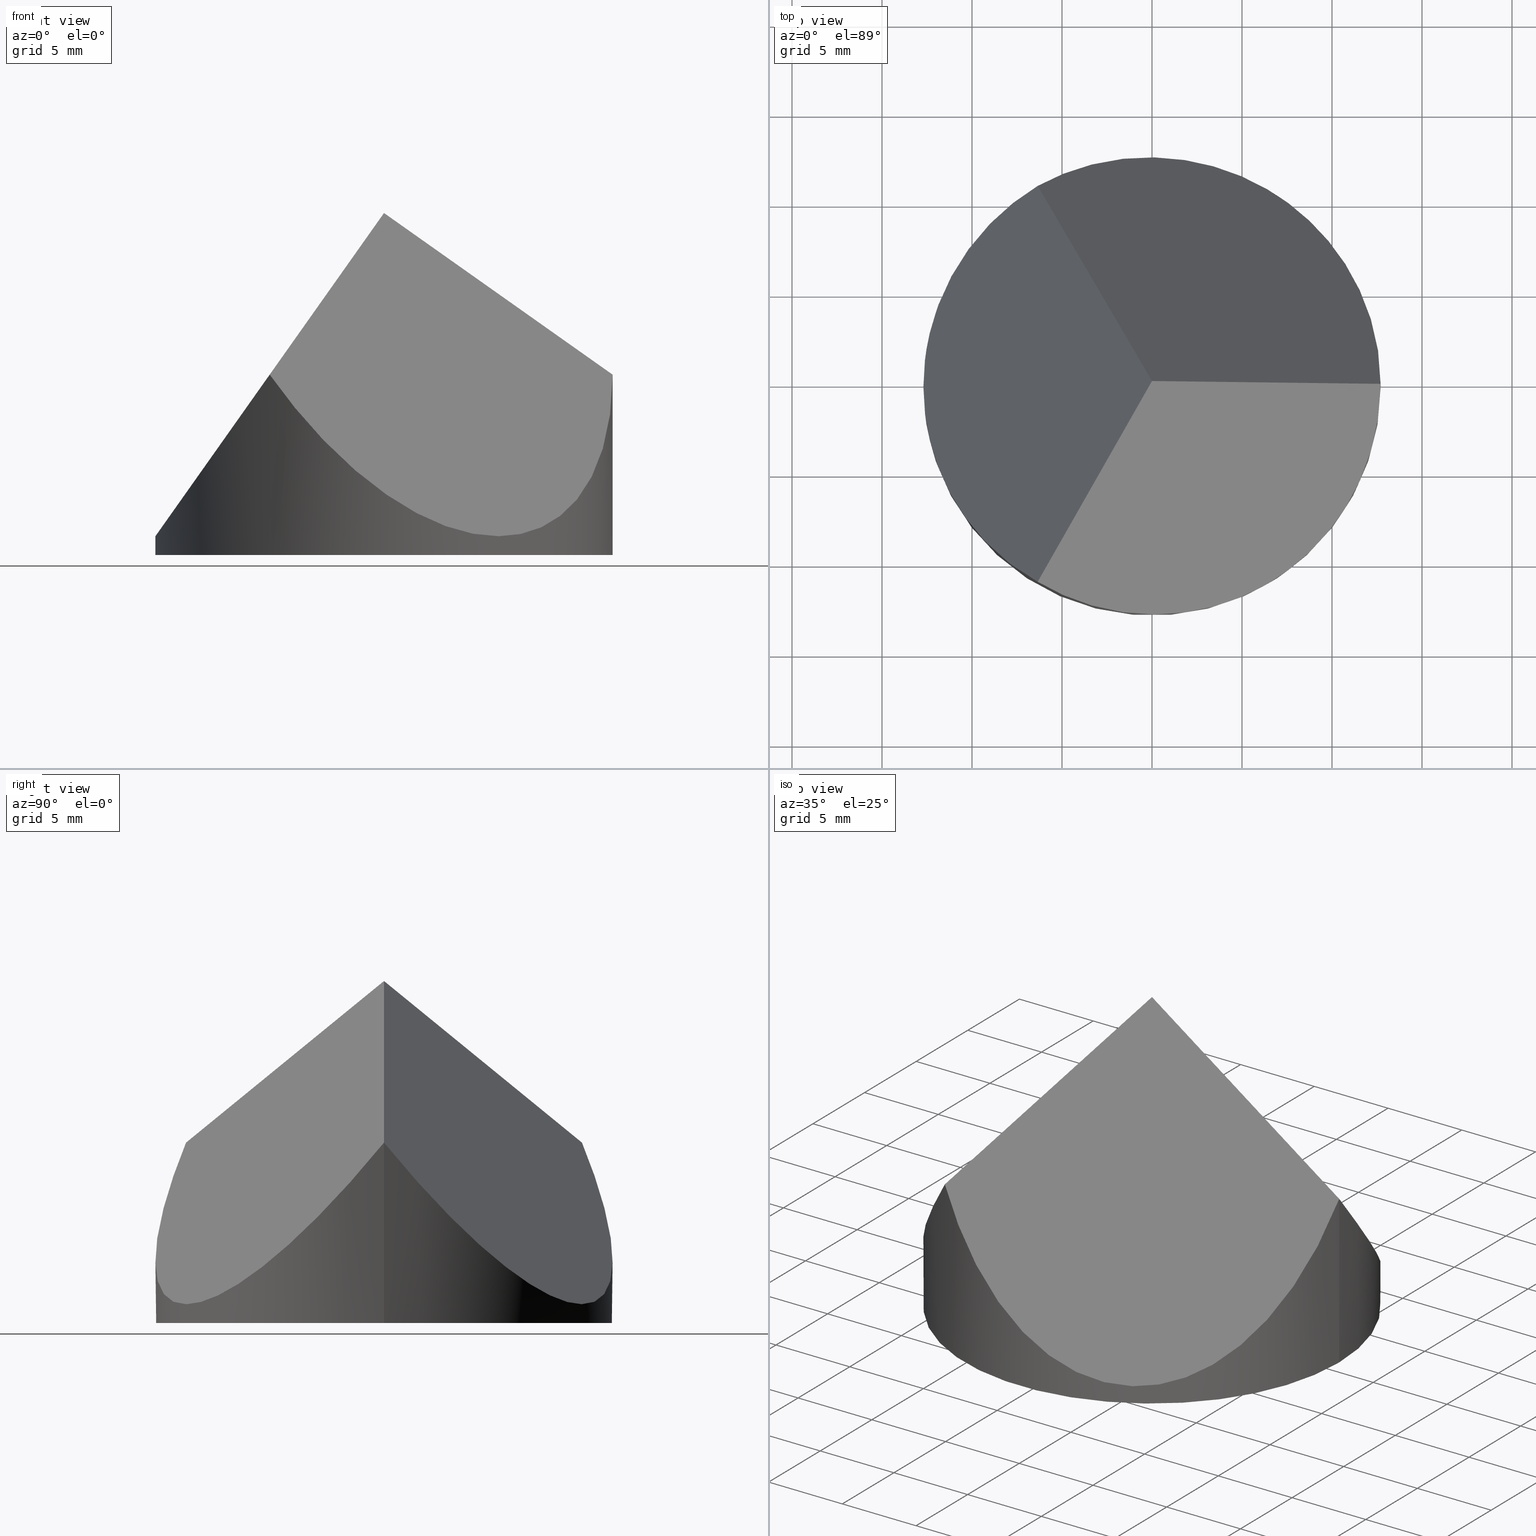
[diagram: canonical four-view strip — front | top / right | iso, engineering-drawing reading convention]
A machine part, canonical four-view strip (front | top / right | iso — engineering-drawing reading convention). The complete STEP part file that produces these views, byte-faithful:
ISO-10303-21;
HEADER;
FILE_DESCRIPTION (( 'STEP AP203' ),
    '1' );
FILE_NAME ('371500.STEP',
    '2019-07-24T07:56:49',
    ( '' ),
    ( '' ),
    'SwSTEP 2.0',
    'SolidWorks 2016',
    '' );
FILE_SCHEMA (( 'CONFIG_CONTROL_DESIGN' ));
ENDSEC;

DATA;
#1 = APPROVAL_PERSON_ORGANIZATION ( #71, #155, #194 ) ;
#2 = PERSON_AND_ORGANIZATION_ROLE ( 'classification_officer' ) ;
#3 = UNCERTAINTY_MEASURE_WITH_UNIT (LENGTH_MEASURE( 1.000000000000000100E-005 ), #188, 'distance_accuracy_value', 'NONE');
#4 = CC_DESIGN_DATE_AND_TIME_ASSIGNMENT ( #218, #212, ( #70 ) ) ;
#5 = EDGE_LOOP ( 'NONE', ( #205, #292, #268, #84, #250 ) ) ;
#6 = FACE_OUTER_BOUND ( 'NONE', #30, .T. ) ;
#7 = EDGE_CURVE ( 'NONE', #67, #47, #12, .T. ) ;
#8 = LOCAL_TIME ( 15, 56, 49.00000000000000000, #43 ) ;
#9 = VERTEX_POINT ( 'NONE', #49 ) ;
#10 = ADVANCED_FACE ( 'NONE', ( #264 ), #17, .T. ) ;
#11 = CARTESIAN_POINT ( 'NONE',  ( 3.174999999999990900, -16.49778394209356900, -3.445977579397118400 ) ) ;
#12 = LINE ( 'NONE', #14, #198 ) ;
#13 = CC_DESIGN_SECURITY_CLASSIFICATION ( #70, ( #310 ) ) ;
#14 = CARTESIAN_POINT ( 'NONE',  ( -7.073520084914156000, -12.25169617543020500, 8.998609560100904400 ) ) ;
#15 = PERSON_AND_ORGANIZATION ( #56, #234 ) ;
#16 = CARTESIAN_POINT ( 'NONE',  ( -6.350000000000017400, 10.99852262806236800, 10.02160896824114100 ) ) ;
#17 = PLANE ( 'NONE',  #119 ) ;
#18 = EDGE_LOOP ( 'NONE', ( #299, #144, #74 ) ) ;
#19 = DIRECTION ( 'NONE',  ( 0.4082200218682777700, 0.7070578185427394100, 0.5774302165486712200 ) ) ;
#20 = CC_DESIGN_PERSON_AND_ORGANIZATION_ASSIGNMENT ( #284, #52, ( #70 ) ) ;
#21 = DIRECTION ( 'NONE',  ( -0.8165531063768112200, -1.827950131834282300E-016, 0.5772703218305786900 ) ) ;
#22 = PERSON_AND_ORGANIZATION_ROLE ( 'design_supplier' ) ;
#23 = DIRECTION ( 'NONE',  ( 1.000000000000000000, 0.0000000000000000000, 0.0000000000000000000 ) ) ;
#24 = CARTESIAN_POINT ( 'NONE',  ( 0.0000000000000000000, 0.0000000000000000000, 0.0000000000000000000 ) ) ;
#25 = APPLICATION_CONTEXT ( 'configuration controlled 3d designs of mechanical parts and assemblies' ) ;
#26 = APPROVAL_PERSON_ORGANIZATION ( #37, #168, #241 ) ;
#27 = MECHANICAL_CONTEXT ( 'NONE', #209, 'mechanical' ) ;
#28 = APPROVAL_STATUS ( 'not_yet_approved' ) ;
#29 = CLOSED_SHELL ( 'NONE', ( #230, #69, #118, #159, #10, #40 ) ) ;
#30 = EDGE_LOOP ( 'NONE', ( #227, #85, #308, #117 ) ) ;
#31 = AXIS2_PLACEMENT_3D ( 'NONE', #204, #166, #73 ) ;
#32 = PRODUCT_DEFINITION ( 'δ֪', '', #245, #94 ) ;
#33 = DATE_AND_TIME ( #104, #51 ) ;
#34 = PRODUCT_DEFINITION_SHAPE ( 'NONE', 'NONE',  #32 ) ;
#35 = LINE ( 'NONE', #55, #161 ) ;
#36 = PERSON_AND_ORGANIZATION ( #56, #234 ) ;
#37 = PERSON_AND_ORGANIZATION ( #56, #234 ) ;
#38 = VERTEX_POINT ( 'NONE', #254 ) ;
#39 = CC_DESIGN_DATE_AND_TIME_ASSIGNMENT ( #171, #192, ( #32 ) ) ;
#40 = ADVANCED_FACE ( 'NONE', ( #148 ), #181, .F. ) ;
#41 = PERSON_AND_ORGANIZATION ( #56, #234 ) ;
#42 = LINE ( 'NONE', #169, #214 ) ;
#43 = COORDINATED_UNIVERSAL_TIME_OFFSET ( 8, 0, .AHEAD. ) ;
#44 = APPROVAL_DATE_TIME ( #298, #86 ) ;
#45 = DATE_AND_TIME ( #97, #116 ) ;
#46 = CARTESIAN_POINT ( 'NONE',  ( 0.0000000000000000000, -24.50000000000000000, 19.00000000000000000 ) ) ;
#47 = VERTEX_POINT ( 'NONE', #306 ) ;
#48 = CARTESIAN_POINT ( 'NONE',  ( 14.72243186433548900, -8.499999999999966200, 19.00000000000000000 ) ) ;
#49 = CARTESIAN_POINT ( 'NONE',  ( 12.69999999999999900, 1.555301434917138400E-015, 0.0000000000000000000 ) ) ;
#50 = CC_DESIGN_PERSON_AND_ORGANIZATION_ASSIGNMENT ( #246, #216, ( #312 ) ) ;
#51 = LOCAL_TIME ( 15, 56, 49.00000000000000000, #301 ) ;
#52 = PERSON_AND_ORGANIZATION_ROLE ( 'classification_officer' ) ;
#53 = APPROVAL_PERSON_ORGANIZATION ( #15, #75, #62 ) ;
#54 = CC_DESIGN_PERSON_AND_ORGANIZATION_ASSIGNMENT ( #41, #309, ( #310 ) ) ;
#55 = CARTESIAN_POINT ( 'NONE',  ( 9.816313587227853100, 1.734723475976807100E-015, 12.06025969476389300 ) ) ;
#56 = PERSON ( 'δָ��', 'δָ��', 'δָ��', ('δָ��'), ('δָ��'), ('δָ��') ) ;
#57 = CARTESIAN_POINT ( 'NONE',  ( -6.350000000000013000, -10.99852262806236200, 10.02160896824114600 ) ) ;
#58 = APPROVAL_PERSON_ORGANIZATION ( #303, #86, #244 ) ;
#59 = DATE_TIME_ROLE ( 'creation_date' ) ;
#60 = PRODUCT ( '371500', '371500', '', ( #27 ) ) ;
#61 = PERSON_AND_ORGANIZATION_ROLE ( 'creator' ) ;
#62 = APPROVAL_ROLE ( '' ) ;
#63 = APPROVAL ( #110, 'δָ��' ) ;
#64 = LOCAL_TIME ( 15, 56, 49.00000000000000000, #170 ) ;
#65 = PERSON_AND_ORGANIZATION ( #56, #234 ) ;
#66 =( BOUNDED_CURVE ( )  B_SPLINE_CURVE ( 3, ( #150, #191, #291, #81 ),
 .UNSPECIFIED., .F., .F. ) 
 B_SPLINE_CURVE_WITH_KNOTS ( ( 4, 4 ),
 ( 0.0000000000000000000, 1.047197551196596500 ),
 .UNSPECIFIED. ) 
 CURVE ( )  GEOMETRIC_REPRESENTATION_ITEM ( )  RATIONAL_B_SPLINE_CURVE ( ( 1.000000000000000000, 0.9106836025229592100, 0.9106836025229592100, 1.000000000000000000 ) ) 
 REPRESENTATION_ITEM ( '' )  );
#67 = VERTEX_POINT ( 'NONE', #165 ) ;
#68 = PRODUCT_DEFINITION ( 'δ֪', '', #310, #135 ) ;
#69 = ADVANCED_FACE ( 'NONE', ( #93 ), #270, .T. ) ;
#70 = SECURITY_CLASSIFICATION ( '', '', #189 ) ;
#71 = PERSON_AND_ORGANIZATION ( #56, #234 ) ;
#72 = DIRECTION ( 'NONE',  ( 0.0000000000000000000, 0.0000000000000000000, 1.000000000000000000 ) ) ;
#73 = DIRECTION ( 'NONE',  ( -1.000000000000000000, 0.0000000000000000000, 0.0000000000000000000 ) ) ;
#74 = ORIENTED_EDGE ( 'NONE', *, *, #105, .F. ) ;
#75 = APPROVAL ( #131, 'δָ��' ) ;
#76 = MECHANICAL_CONTEXT ( 'NONE', #25, 'mechanical' ) ;
#77 = APPROVAL_STATUS ( 'not_yet_approved' ) ;
#78 = CIRCLE ( 'NONE', #136, 12.69999999999999900 ) ;
#79 = APPLICATION_PROTOCOL_DEFINITION ( 'international standard', 'config_control_design', 1994, #289 ) ;
#80 = APPROVAL_DATE_TIME ( #106, #75 ) ;
#81 = CARTESIAN_POINT ( 'NONE',  ( -6.350000000000017400, 10.99852262806236800, 10.02160896824114100 ) ) ;
#82 = SECURITY_CLASSIFICATION_LEVEL ( 'unclassified' ) ;
#83 = PERSON_AND_ORGANIZATION_ROLE ( 'design_supplier' ) ;
#84 = ORIENTED_EDGE ( 'NONE', *, *, #265, .F. ) ;
#85 = ORIENTED_EDGE ( 'NONE', *, *, #7, .T. ) ;
#86 = APPROVAL ( #130, 'δָ��' ) ;
#87 = CIRCLE ( 'NONE', #229, 12.69999999999999900 ) ;
#88 = PRODUCT_RELATED_PRODUCT_CATEGORY ( 'detail', '', ( #312 ) ) ;
#89 = VECTOR ( 'NONE', #109, 1000.000000000000000 ) ;
#90 = PERSON_AND_ORGANIZATION ( #56, #234 ) ;
#91 = COORDINATED_UNIVERSAL_TIME_OFFSET ( 8, 0, .AHEAD. ) ;
#92 = APPROVAL ( #217, 'δָ��' ) ;
#93 = FACE_OUTER_BOUND ( 'NONE', #279, .T. ) ;
#94 = DESIGN_CONTEXT ( 'detailed design', #219, 'design' ) ;
#95 = CARTESIAN_POINT ( 'NONE',  ( 11.69134295108994500, 6.749999999999978700, 19.00000000000000000 ) ) ;
#96 = DIRECTION ( 'NONE',  ( 1.000000000000000000, 0.0000000000000000000, 0.0000000000000000000 ) ) ;
#97 = CALENDAR_DATE ( 2019, 24, 7 ) ;
#98 = CARTESIAN_POINT ( 'NONE',  ( 0.0000000000000000000, 0.0000000000000000000, 0.0000000000000000000 ) ) ;
#99 = CARTESIAN_POINT ( 'NONE',  ( -12.69999999999999900, 0.0000000000000000000, 1.043217936482335100 ) ) ;
#100 = ORIENTED_EDGE ( 'NONE', *, *, #251, .F. ) ;
#101 =( NAMED_UNIT ( * ) PLANE_ANGLE_UNIT ( ) SI_UNIT ( $, .RADIAN. ) );
#102 = CC_DESIGN_PERSON_AND_ORGANIZATION_ASSIGNMENT ( #260, #283, ( #68 ) ) ;
#103 = APPLICATION_PROTOCOL_DEFINITION ( 'international standard', 'config_control_design', 1994, #209 ) ;
#104 = CALENDAR_DATE ( 2019, 24, 7 ) ;
#105 = EDGE_CURVE ( 'NONE', #38, #67, #142, .T. ) ;
#106 = DATE_AND_TIME ( #140, #297 ) ;
#107 = CARTESIAN_POINT ( 'NONE',  ( 0.0000000000000000000, 0.0000000000000000000, 0.0000000000000000000 ) ) ;
#108 = APPROVAL_DATE_TIME ( #45, #168 ) ;
#109 = DIRECTION ( 'NONE',  ( 0.4082765531884057200, -0.7071557336614137100, 0.5772703218305811300 ) ) ;
#110 = APPROVAL_STATUS ( 'not_yet_approved' ) ;
#111 = EDGE_LOOP ( 'NONE', ( #100, #158, #255 ) ) ;
#112 = AXIS2_PLACEMENT_3D ( 'NONE', #107, #146, #23 ) ;
#113 = DATE_AND_TIME ( #240, #64 ) ;
#114 = COORDINATED_UNIVERSAL_TIME_OFFSET ( 8, 0, .AHEAD. ) ;
#115 = CALENDAR_DATE ( 2019, 24, 7 ) ;
#116 = LOCAL_TIME ( 15, 56, 49.00000000000000000, #157 ) ;
#117 = ORIENTED_EDGE ( 'NONE', *, *, #242, .F. ) ;
#118 = ADVANCED_FACE ( 'NONE', ( #6 ), #164, .F. ) ;
#119 = AXIS2_PLACEMENT_3D ( 'NONE', #48, #19, #307 ) ;
#120 = PERSON_AND_ORGANIZATION ( #56, #234 ) ;
#121 = SHAPE_DEFINITION_REPRESENTATION ( #34, #228 ) ;
#122 = LOCAL_TIME ( 15, 56, 49.00000000000000000, #179 ) ;
#123 = CARTESIAN_POINT ( 'NONE',  ( 12.70000000000000100, 10.99852262806238200, -3.445977579397081900 ) ) ;
#124 = DIRECTION ( 'NONE',  ( 1.000000000000000000, 0.0000000000000000000, -0.0000000000000000000 ) ) ;
#125 = DIRECTION ( 'NONE',  ( -0.5774302165486712200, 0.0000000000000000000, -0.8164400437365592100 ) ) ;
#126 =( BOUNDED_CURVE ( )  B_SPLINE_CURVE ( 3, ( #275, #123, #185, #280 ),
 .UNSPECIFIED., .F., .T. ) 
 B_SPLINE_CURVE_WITH_KNOTS ( ( 4, 4 ),
 ( 5.235987755982986200, 7.330382858376182800 ),
 .UNSPECIFIED. ) 
 CURVE ( )  GEOMETRIC_REPRESENTATION_ITEM ( )  RATIONAL_B_SPLINE_CURVE ( ( 1.000000000000000000, 0.6666666666666663000, 0.6666666666666663000, 1.000000000000000000 ) ) 
 REPRESENTATION_ITEM ( '' )  );
#127 = SECURITY_CLASSIFICATION ( '', '', #82 ) ;
#128 = CARTESIAN_POINT ( 'NONE',  ( -12.69999999999999900, -4.648522628062364600, 1.043217936482331700 ) ) ;
#129 = CARTESIAN_POINT ( 'NONE',  ( 7.073520084914155100, -12.25169617543019900, 29.00139043989909000 ) ) ;
#130 = APPROVAL_STATUS ( 'not_yet_approved' ) ;
#131 = APPROVAL_STATUS ( 'not_yet_approved' ) ;
#132 = ORIENTED_EDGE ( 'NONE', *, *, #302, .T. ) ;
#133 = AXIS2_PLACEMENT_3D ( 'NONE', #46, #139, #125 ) ;
#134 = EDGE_CURVE ( 'NONE', #9, #235, #78, .T. ) ;
#135 = DESIGN_CONTEXT ( 'detailed design', #289, 'design' ) ;
#136 = AXIS2_PLACEMENT_3D ( 'NONE', #305, #184, #143 ) ;
#137 = ORIENTED_EDGE ( 'NONE', *, *, #265, .T. ) ;
#138 = CC_DESIGN_DATE_AND_TIME_ASSIGNMENT ( #252, #176, ( #127 ) ) ;
#139 = DIRECTION ( 'NONE',  ( 0.8164400437365592100, 0.0000000000000000000, -0.5774302165486712200 ) ) ;
#140 = CALENDAR_DATE ( 2019, 24, 7 ) ;
#141 = DIRECTION ( 'NONE',  ( 0.0000000000000000000, 0.0000000000000000000, 1.000000000000000000 ) ) ;
#142 =( BOUNDED_CURVE ( )  B_SPLINE_CURVE ( 3, ( #281, #187, #11, #253 ),
 .UNSPECIFIED., .F., .T. ) 
 B_SPLINE_CURVE_WITH_KNOTS ( ( 4, 4 ),
 ( 5.235987755982986200, 7.330382858376182800 ),
 .UNSPECIFIED. ) 
 CURVE ( )  GEOMETRIC_REPRESENTATION_ITEM ( )  RATIONAL_B_SPLINE_CURVE ( ( 1.000000000000000000, 0.6666666666666663000, 0.6666666666666663000, 1.000000000000000000 ) ) 
 REPRESENTATION_ITEM ( '' )  );
#143 = DIRECTION ( 'NONE',  ( 1.000000000000000000, 0.0000000000000000000, 0.0000000000000000000 ) ) ;
#144 = ORIENTED_EDGE ( 'NONE', *, *, #7, .F. ) ;
#145 = PRODUCT_DEFINITION_SHAPE ( 'NONE', 'NONE',  #68 ) ;
#146 = DIRECTION ( 'NONE',  ( 0.0000000000000000000, 0.0000000000000000000, 1.000000000000000000 ) ) ;
#147 = CC_DESIGN_DATE_AND_TIME_ASSIGNMENT ( #33, #59, ( #68 ) ) ;
#148 = FACE_OUTER_BOUND ( 'NONE', #18, .T. ) ;
#149 = EDGE_CURVE ( 'NONE', #235, #9, #87, .T. ) ;
#150 = CARTESIAN_POINT ( 'NONE',  ( -12.69999999999999900, 0.0000000000000000000, 1.043217936482335100 ) ) ;
#151 = DIRECTION ( 'NONE',  ( -0.0000000000000000000, -0.0000000000000000000, -1.000000000000000000 ) ) ;
#152 = CARTESIAN_POINT ( 'NONE',  ( -12.69999999999999900, 0.0000000000000000000, 1.043217936482335100 ) ) ;
#153 = APPROVAL_PERSON_ORGANIZATION ( #202, #63, #174 ) ;
#154 = APPLICATION_PROTOCOL_DEFINITION ( 'international standard', 'config_control_design', 1994, #219 ) ;
#155 = APPROVAL ( #28, 'δָ��' ) ;
#156 = LINE ( 'NONE', #311, #286 ) ;
#157 = COORDINATED_UNIVERSAL_TIME_OFFSET ( 8, 0, .AHEAD. ) ;
#158 = ORIENTED_EDGE ( 'NONE', *, *, #225, .T. ) ;
#159 = ADVANCED_FACE ( 'NONE', ( #259 ), #203, .F. ) ;
#160 = CALENDAR_DATE ( 2019, 24, 7 ) ;
#161 = VECTOR ( 'NONE', #21, 1000.000000000000200 ) ;
#162 = LOCAL_TIME ( 15, 56, 49.00000000000000000, #243 ) ;
#163 = APPROVAL_DATE_TIME ( #226, #63 ) ;
#164 = PLANE ( 'NONE',  #133 ) ;
#165 = CARTESIAN_POINT ( 'NONE',  ( -6.350000000000013000, -10.99852262806236200, 10.02160896824114600 ) ) ;
#166 = DIRECTION ( 'NONE',  ( -0.0000000000000000000, -0.0000000000000000000, -1.000000000000000000 ) ) ;
#167 = DIRECTION ( 'NONE',  ( 1.000000000000000000, 0.0000000000000000000, 0.0000000000000000000 ) ) ;
#168 = APPROVAL ( #77, 'δָ��' ) ;
#169 = CARTESIAN_POINT ( 'NONE',  ( -12.69999999999999900, 0.0000000000000000000, 19.00000000000000000 ) ) ;
#170 = COORDINATED_UNIVERSAL_TIME_OFFSET ( 8, 0, .AHEAD. ) ;
#171 = DATE_AND_TIME ( #233, #162 ) ;
#172 =( NAMED_UNIT ( * ) SI_UNIT ( $, .STERADIAN. ) SOLID_ANGLE_UNIT ( ) );
#173 = APPLICATION_PROTOCOL_DEFINITION ( 'international standard', 'config_control_design', 1994, #25 ) ;
#174 = APPROVAL_ROLE ( '' ) ;
#175 = VERTEX_POINT ( 'NONE', #16 ) ;
#176 = DATE_TIME_ROLE ( 'classification_date' ) ;
#177 = APPROVAL_DATE_TIME ( #113, #92 ) ;
#178 = APPROVAL_DATE_TIME ( #287, #155 ) ;
#179 = COORDINATED_UNIVERSAL_TIME_OFFSET ( 8, 0, .AHEAD. ) ;
#180 = CC_DESIGN_PERSON_AND_ORGANIZATION_ASSIGNMENT ( #120, #22, ( #310 ) ) ;
#181 = PLANE ( 'NONE',  #190 ) ;
#182 = DIRECTION ( 'NONE',  ( 0.4082765531884056700, 0.7071557336614138200, 0.5772703218305810200 ) ) ;
#183 = CALENDAR_DATE ( 2019, 24, 7 ) ;
#184 = DIRECTION ( 'NONE',  ( 0.0000000000000000000, 0.0000000000000000000, 1.000000000000000000 ) ) ;
#185 = CARTESIAN_POINT ( 'NONE',  ( 3.174999999999988300, 16.49778394209356900, -3.445977579397109000 ) ) ;
#186 = DIRECTION ( 'NONE',  ( -0.4082200218682780500, 0.7070578185427394100, -0.5774302165486712200 ) ) ;
#187 = CARTESIAN_POINT ( 'NONE',  ( 12.70000000000000600, -10.99852262806238000, -3.445977579397086400 ) ) ;
#188 =( LENGTH_UNIT ( ) NAMED_UNIT ( * ) SI_UNIT ( .MILLI., .METRE. ) );
#189 = SECURITY_CLASSIFICATION_LEVEL ( 'unclassified' ) ;
#190 = AXIS2_PLACEMENT_3D ( 'NONE', #95, #186, #207 ) ;
#191 = CARTESIAN_POINT ( 'NONE',  ( -12.69999999999999900, 4.648522628062364600, 1.043217936482331700 ) ) ;
#192 = DATE_TIME_ROLE ( 'creation_date' ) ;
#193 = MANIFOLD_SOLID_BREP ( '�г�-����3', #29 ) ;
#194 = APPROVAL_ROLE ( '' ) ;
#195 = AXIS2_PLACEMENT_3D ( 'NONE', #237, #277, #304 ) ;
#196 = EDGE_LOOP ( 'NONE', ( #269, #249 ) ) ;
#197 = CC_DESIGN_PERSON_AND_ORGANIZATION_ASSIGNMENT ( #261, #2, ( #127 ) ) ;
#198 = VECTOR ( 'NONE', #182, 1000.000000000000000 ) ;
#199 = ORIENTED_EDGE ( 'NONE', *, *, #149, .T. ) ;
#200 = ORIENTED_EDGE ( 'NONE', *, *, #266, .F. ) ;
#201 = CC_DESIGN_APPROVAL ( #86, ( #68 ) ) ;
#202 = PERSON_AND_ORGANIZATION ( #56, #234 ) ;
#203 = PLANE ( 'NONE',  #256 ) ;
#204 = CARTESIAN_POINT ( 'NONE',  ( 0.0000000000000000000, 0.0000000000000000000, 19.00000000000000000 ) ) ;
#205 = ORIENTED_EDGE ( 'NONE', *, *, #225, .F. ) ;
#206 = AXIS2_PLACEMENT_3D ( 'NONE', #24, #213, #167 ) ;
#207 = DIRECTION ( 'NONE',  ( 0.0000000000000000000, 0.6325343505460013800, 0.7745323075116675700 ) ) ;
#208 = CARTESIAN_POINT ( 'NONE',  ( -12.69999999999999900, 0.0000000000000000000, 0.0000000000000000000 ) ) ;
#209 = APPLICATION_CONTEXT ( 'configuration controlled 3d designs of mechanical parts and assemblies' ) ;
#210 = FACE_OUTER_BOUND ( 'NONE', #5, .T. ) ;
#211 = CC_DESIGN_APPROVAL ( #155, ( #127 ) ) ;
#212 = DATE_TIME_ROLE ( 'classification_date' ) ;
#213 = DIRECTION ( 'NONE',  ( 0.0000000000000000000, 0.0000000000000000000, 1.000000000000000000 ) ) ;
#214 = VECTOR ( 'NONE', #257, 1000.000000000000000 ) ;
#215 = COORDINATED_UNIVERSAL_TIME_OFFSET ( 8, 0, .AHEAD. ) ;
#216 = PERSON_AND_ORGANIZATION_ROLE ( 'design_owner' ) ;
#217 = APPROVAL_STATUS ( 'not_yet_approved' ) ;
#218 = DATE_AND_TIME ( #160, #232 ) ;
#219 = APPLICATION_CONTEXT ( 'configuration controlled 3d designs of mechanical parts and assemblies' ) ;
#220 = VERTEX_POINT ( 'NONE', #99 ) ;
#221 = PERSON_AND_ORGANIZATION_ROLE ( 'creator' ) ;
#222 = CC_DESIGN_PERSON_AND_ORGANIZATION_ASSIGNMENT ( #267, #293, ( #60 ) ) ;
#223 = APPROVAL_PERSON_ORGANIZATION ( #272, #92, #239 ) ;
#224 = LINE ( 'NONE', #129, #89 ) ;
#225 = EDGE_CURVE ( 'NONE', #38, #175, #126, .T. ) ;
#226 = DATE_AND_TIME ( #276, #290 ) ;
#227 = ORIENTED_EDGE ( 'NONE', *, *, #302, .F. ) ;
#228 = ADVANCED_BREP_SHAPE_REPRESENTATION ( '371500', ( #193, #112 ), #294 ) ;
#229 = AXIS2_PLACEMENT_3D ( 'NONE', #236, #72, #96 ) ;
#230 = ADVANCED_FACE ( 'NONE', ( #210 ), #273, .T. ) ;
#231 = CC_DESIGN_APPROVAL ( #168, ( #70 ) ) ;
#232 = LOCAL_TIME ( 15, 56, 49.00000000000000000, #295 ) ;
#233 = CALENDAR_DATE ( 2019, 24, 7 ) ;
#234 = ORGANIZATION ( 'δָ��', 'δָ��', '' ) ;
#235 = VERTEX_POINT ( 'NONE', #208 ) ;
#236 = CARTESIAN_POINT ( 'NONE',  ( 0.0000000000000000000, 0.0000000000000000000, 0.0000000000000000000 ) ) ;
#237 = CARTESIAN_POINT ( 'NONE',  ( 0.0000000000000000000, 0.0000000000000000000, 19.00000000000000000 ) ) ;
#238 = CC_DESIGN_PERSON_AND_ORGANIZATION_ASSIGNMENT ( #65, #61, ( #32 ) ) ;
#239 = APPROVAL_ROLE ( '' ) ;
#240 = CALENDAR_DATE ( 2019, 24, 7 ) ;
#241 = APPROVAL_ROLE ( '' ) ;
#242 = EDGE_CURVE ( 'NONE', #220, #175, #66, .T. ) ;
#243 = COORDINATED_UNIVERSAL_TIME_OFFSET ( 8, 0, .AHEAD. ) ;
#244 = APPROVAL_ROLE ( '' ) ;
#245 = PRODUCT_DEFINITION_FORMATION_WITH_SPECIFIED_SOURCE ( '�κ�', '', #60, .NOT_KNOWN. ) ;
#246 = PERSON_AND_ORGANIZATION ( #56, #234 ) ;
#247 = LOCAL_TIME ( 15, 56, 49.00000000000000000, #215 ) ;
#248 = CC_DESIGN_PERSON_AND_ORGANIZATION_ASSIGNMENT ( #90, #221, ( #245 ) ) ;
#249 = ORIENTED_EDGE ( 'NONE', *, *, #134, .F. ) ;
#250 = ORIENTED_EDGE ( 'NONE', *, *, #242, .T. ) ;
#251 = EDGE_CURVE ( 'NONE', #38, #47, #35, .T. ) ;
#252 = DATE_AND_TIME ( #274, #8 ) ;
#253 = CARTESIAN_POINT ( 'NONE',  ( -6.350000000000013000, -10.99852262806236200, 10.02160896824114600 ) ) ;
#254 = CARTESIAN_POINT ( 'NONE',  ( 12.70000000000000600, 2.380270583351730600E-015, 10.02160896824120000 ) ) ;
#255 = ORIENTED_EDGE ( 'NONE', *, *, #288, .T. ) ;
#256 = AXIS2_PLACEMENT_3D ( 'NONE', #98, #141, #124 ) ;
#257 = DIRECTION ( 'NONE',  ( -0.0000000000000000000, -0.0000000000000000000, -1.000000000000000000 ) ) ;
#258 = CC_DESIGN_APPROVAL ( #75, ( #245 ) ) ;
#259 = FACE_OUTER_BOUND ( 'NONE', #196, .T. ) ;
#260 = PERSON_AND_ORGANIZATION ( #56, #234 ) ;
#261 = PERSON_AND_ORGANIZATION ( #56, #234 ) ;
#262 = ORIENTED_EDGE ( 'NONE', *, *, #105, .T. ) ;
#263 = CC_DESIGN_APPROVAL ( #92, ( #310 ) ) ;
#264 = FACE_OUTER_BOUND ( 'NONE', #111, .T. ) ;
#265 = EDGE_CURVE ( 'NONE', #220, #235, #42, .T. ) ;
#266 = EDGE_CURVE ( 'NONE', #38, #9, #156, .T. ) ;
#267 = PERSON_AND_ORGANIZATION ( #56, #234 ) ;
#268 = ORIENTED_EDGE ( 'NONE', *, *, #134, .T. ) ;
#269 = ORIENTED_EDGE ( 'NONE', *, *, #149, .F. ) ;
#270 = CYLINDRICAL_SURFACE ( 'NONE', #31, 12.69999999999999900 ) ;
#271 = CC_DESIGN_SECURITY_CLASSIFICATION ( #127, ( #245 ) ) ;
#272 = PERSON_AND_ORGANIZATION ( #56, #234 ) ;
#273 = CYLINDRICAL_SURFACE ( 'NONE', #195, 12.69999999999999900 ) ;
#274 = CALENDAR_DATE ( 2019, 24, 7 ) ;
#275 = CARTESIAN_POINT ( 'NONE',  ( 12.70000000000000600, 2.380270583351730600E-015, 10.02160896824120000 ) ) ;
#276 = CALENDAR_DATE ( 2019, 24, 7 ) ;
#277 = DIRECTION ( 'NONE',  ( -0.0000000000000000000, -0.0000000000000000000, -1.000000000000000000 ) ) ;
#278 =( BOUNDED_CURVE ( )  B_SPLINE_CURVE ( 3, ( #57, #285, #128, #152 ),
 .UNSPECIFIED., .F., .T. ) 
 B_SPLINE_CURVE_WITH_KNOTS ( ( 4, 4 ),
 ( 5.235987755982989700, 6.283185307179586200 ),
 .UNSPECIFIED. ) 
 CURVE ( )  GEOMETRIC_REPRESENTATION_ITEM ( )  RATIONAL_B_SPLINE_CURVE ( ( 1.000000000000000000, 0.9106836025229592100, 0.9106836025229592100, 1.000000000000000000 ) ) 
 REPRESENTATION_ITEM ( '' )  );
#279 = EDGE_LOOP ( 'NONE', ( #200, #262, #132, #137, #199 ) ) ;
#280 = CARTESIAN_POINT ( 'NONE',  ( -6.350000000000017400, 10.99852262806236800, 10.02160896824114100 ) ) ;
#281 = CARTESIAN_POINT ( 'NONE',  ( 12.70000000000000600, 2.380270583351730600E-015, 10.02160896824120000 ) ) ;
#282 = CC_DESIGN_PERSON_AND_ORGANIZATION_ASSIGNMENT ( #36, #83, ( #245 ) ) ;
#283 = PERSON_AND_ORGANIZATION_ROLE ( 'creator' ) ;
#284 = PERSON_AND_ORGANIZATION ( #56, #234 ) ;
#285 = CARTESIAN_POINT ( 'NONE',  ( -10.37573868596881800, -8.674261314031179300, 4.329537139216437700 ) ) ;
#286 = VECTOR ( 'NONE', #151, 1000.000000000000000 ) ;
#287 = DATE_AND_TIME ( #183, #247 ) ;
#288 = EDGE_CURVE ( 'NONE', #175, #47, #224, .T. ) ;
#289 = APPLICATION_CONTEXT ( 'configuration controlled 3d designs of mechanical parts and assemblies' ) ;
#290 = LOCAL_TIME ( 15, 56, 49.00000000000000000, #91 ) ;
#291 = CARTESIAN_POINT ( 'NONE',  ( -10.37573868596882300, 8.674261314031175700, 4.329537139216434100 ) ) ;
#292 = ORIENTED_EDGE ( 'NONE', *, *, #266, .T. ) ;
#293 = PERSON_AND_ORGANIZATION_ROLE ( 'design_owner' ) ;
#294 =( GEOMETRIC_REPRESENTATION_CONTEXT ( 3 ) GLOBAL_UNCERTAINTY_ASSIGNED_CONTEXT ( ( #3 ) ) GLOBAL_UNIT_ASSIGNED_CONTEXT ( ( #188, #101, #172 ) ) REPRESENTATION_CONTEXT ( 'NONE', 'WORKASPACE' ) );
#295 = COORDINATED_UNIVERSAL_TIME_OFFSET ( 8, 0, .AHEAD. ) ;
#296 = PRODUCT_RELATED_PRODUCT_CATEGORY ( 'detail', '', ( #60 ) ) ;
#297 = LOCAL_TIME ( 15, 56, 49.00000000000000000, #114 ) ;
#298 = DATE_AND_TIME ( #115, #122 ) ;
#299 = ORIENTED_EDGE ( 'NONE', *, *, #251, .T. ) ;
#300 = CC_DESIGN_APPROVAL ( #63, ( #32 ) ) ;
#301 = COORDINATED_UNIVERSAL_TIME_OFFSET ( 8, 0, .AHEAD. ) ;
#302 = EDGE_CURVE ( 'NONE', #67, #220, #278, .T. ) ;
#303 = PERSON_AND_ORGANIZATION ( #56, #234 ) ;
#304 = DIRECTION ( 'NONE',  ( -1.000000000000000000, 0.0000000000000000000, 0.0000000000000000000 ) ) ;
#305 = CARTESIAN_POINT ( 'NONE',  ( 0.0000000000000000000, 0.0000000000000000000, 0.0000000000000000000 ) ) ;
#306 = CARTESIAN_POINT ( 'NONE',  ( 2.602085213965210600E-015, 2.022940028949129900E-016, 19.00000000000000000 ) ) ;
#307 = DIRECTION ( 'NONE',  ( 0.0000000000000000000, -0.6325343505460013800, 0.7745323075116674600 ) ) ;
#308 = ORIENTED_EDGE ( 'NONE', *, *, #288, .F. ) ;
#309 = PERSON_AND_ORGANIZATION_ROLE ( 'creator' ) ;
#310 = PRODUCT_DEFINITION_FORMATION_WITH_SPECIFIED_SOURCE ( '�κ�', '', #312, .NOT_KNOWN. ) ;
#311 = CARTESIAN_POINT ( 'NONE',  ( 12.69999999999999900, 1.555301434917138400E-015, 19.00000000000000000 ) ) ;
#312 = PRODUCT ( '371500', '371500', '', ( #76 ) ) ;
ENDSEC;
END-ISO-10303-21;
